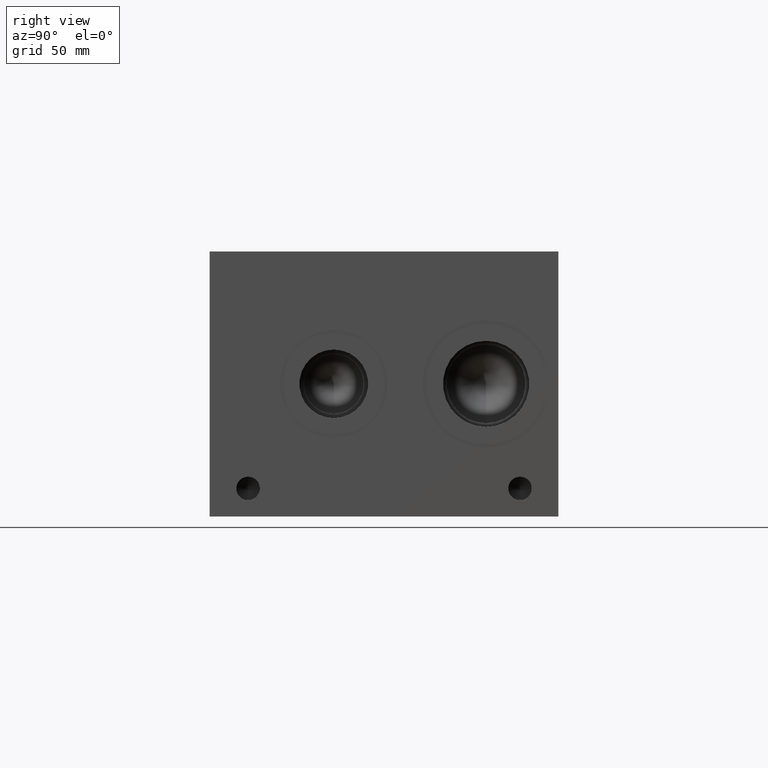
[diagram: clean part render]
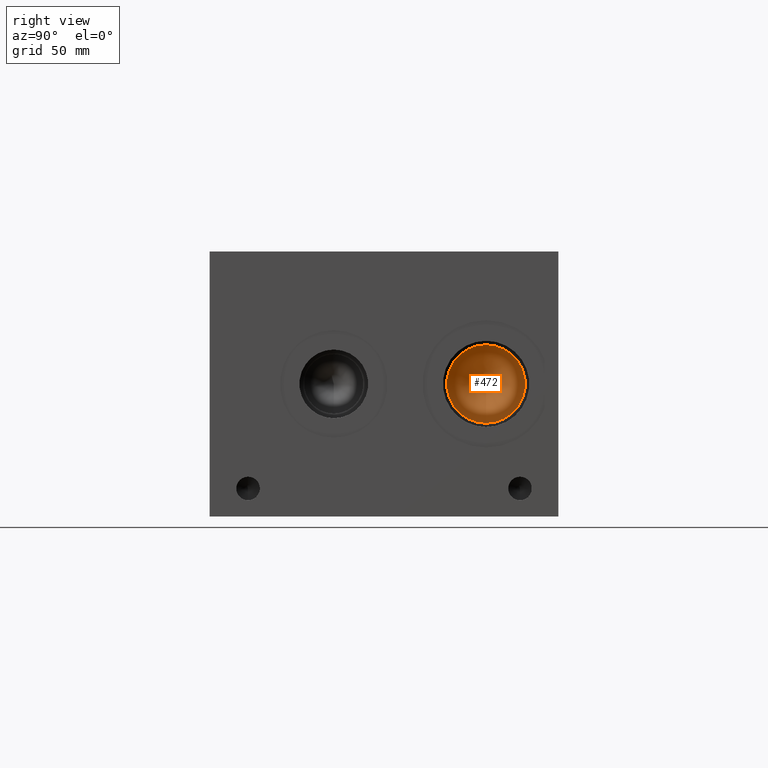
[diagram: same view with one face highlighted and labeled with its STEP entity id]
A machine part, right view. The second image highlights one B-rep face of the part: STEP entity #472.
In plain terms, the highlighted conical surface has half-angle 60 deg.
Its self-contained STEP definition (entity closure, byte-faithful):
#456=CARTESIAN_POINT('',(226.41715904999998,125.83159999999999,60.325000000000003));
#457=DIRECTION('',(1.0,0.0,0.0));
#458=DIRECTION('',(0.0,0.0,-1.0));
#459=AXIS2_PLACEMENT_3D('',#456,#457,#458);
#460=CONICAL_SURFACE('',#459,8.928099999999999,59.999999943936587);
#461=CARTESIAN_POINT('',(231.5718,125.83159999999999,42.468800000000009));
#462=VERTEX_POINT('',#461);
#463=CARTESIAN_POINT('',(231.5718,125.83159999999999,60.325000000000003));
#464=DIRECTION('',(1.0,0.0,0.0));
#465=DIRECTION('',(0.0,0.0,-1.0));
#466=AXIS2_PLACEMENT_3D('',#463,#464,#465);
#467=CIRCLE('',#466,17.856199999999998);
#468=EDGE_CURVE('',#462,#462,#467,.T.);
#469=ORIENTED_EDGE('',*,*,#468,.T.);
#470=EDGE_LOOP('',(#469));
#471=FACE_OUTER_BOUND('',#470,.T.);
#472=ADVANCED_FACE('',(#471),#460,.F.);